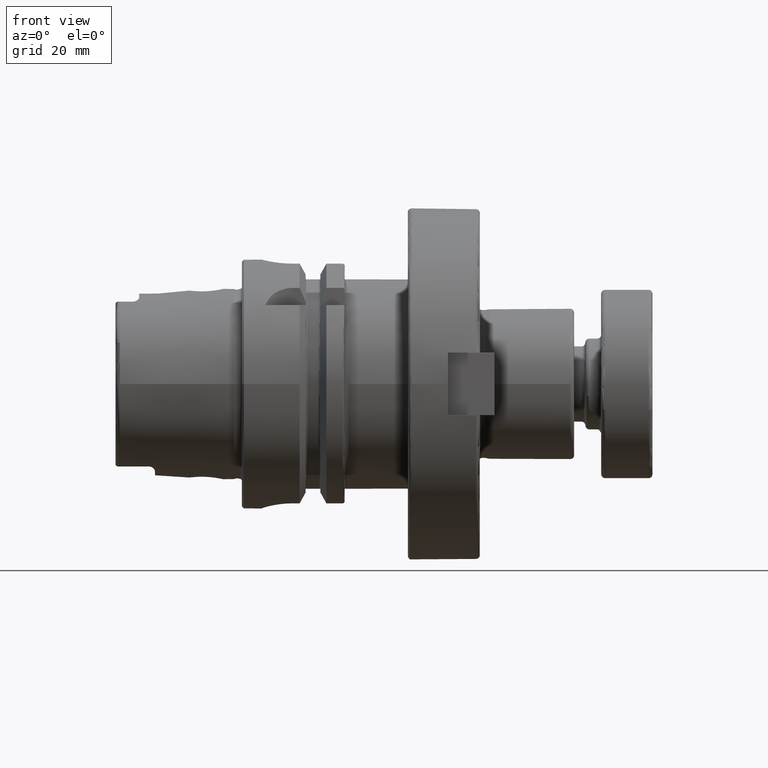
[diagram: clean part render]
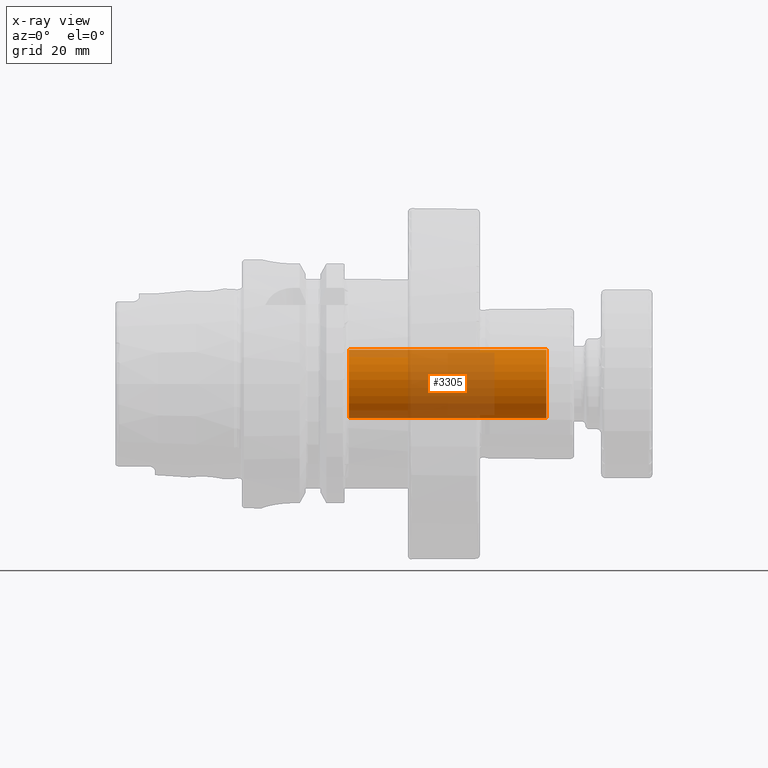
[diagram: x-ray — body ghosted, one internal face saturated and labeled with its STEP entity id]
A machine part, front view, then the same camera in x-ray: the body is ghosted and one INTERNAL B-rep face — a face not visible from any outside direction — is saturated and labeled: STEP entity #3305.
In plain terms, the highlighted cylindrical surface (bore or boss wall) has radius 8.6614 mm, axis along (1, 0, 0).
Its self-contained STEP definition (entity closure, byte-faithful):
#159=CYLINDRICAL_SURFACE('',#3651,8.6614);
#261=CIRCLE('',#3650,8.6614);
#262=CIRCLE('',#3652,8.6614);
#470=FACE_OUTER_BOUND('',#679,.T.);
#679=EDGE_LOOP('',(#2297,#2298,#2299,#2300));
#904=LINE('',#5256,#1103);
#1103=VECTOR('',#4173,8.6614);
#1384=VERTEX_POINT('',#5252);
#1385=VERTEX_POINT('',#5255);
#1736=EDGE_CURVE('',#1384,#1384,#261,.T.);
#1737=EDGE_CURVE('',#1384,#1385,#904,.T.);
#1738=EDGE_CURVE('',#1385,#1385,#262,.T.);
#2297=ORIENTED_EDGE('',*,*,#1736,.T.);
#2298=ORIENTED_EDGE('',*,*,#1737,.T.);
#2299=ORIENTED_EDGE('',*,*,#1738,.F.);
#2300=ORIENTED_EDGE('',*,*,#1737,.F.);
#3305=ADVANCED_FACE('',(#470),#159,.F.);
#3650=AXIS2_PLACEMENT_3D('',#5253,#4169,#4170);
#3651=AXIS2_PLACEMENT_3D('',#5254,#4171,#4172);
#3652=AXIS2_PLACEMENT_3D('',#5257,#4174,#4175);
#4169=DIRECTION('center_axis',(1.,0.,0.));
#4170=DIRECTION('ref_axis',(0.,0.,-1.));
#4171=DIRECTION('center_axis',(1.,0.,0.));
#4172=DIRECTION('ref_axis',(0.,0.,-1.));
#4173=DIRECTION('',(-1.,0.,0.));
#4174=DIRECTION('center_axis',(1.,0.,0.));
#4175=DIRECTION('ref_axis',(0.,0.,-1.));
#5252=CARTESIAN_POINT('',(77.07,-1.06071557861349E-15,8.6614));
#5253=CARTESIAN_POINT('Origin',(77.07,0.,0.));
#5254=CARTESIAN_POINT('Origin',(55.57,0.,0.));
#5255=CARTESIAN_POINT('',(27.07,-1.06071557861349E-15,8.6614));
#5256=CARTESIAN_POINT('',(55.57,-1.06071557861349E-15,8.6614));
#5257=CARTESIAN_POINT('Origin',(27.07,0.,0.));